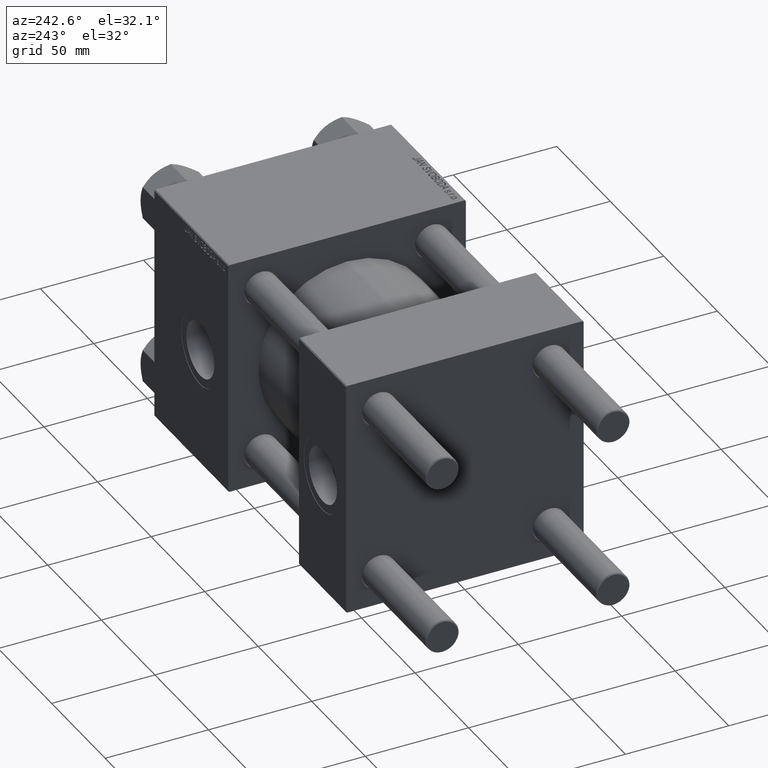
[diagram: clean part render]
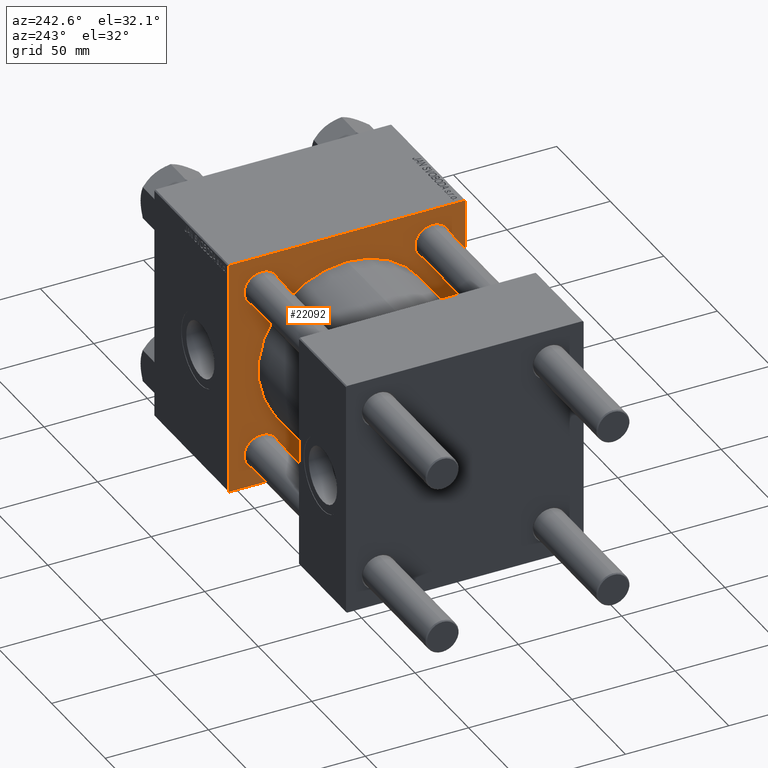
[diagram: same view with one face highlighted and labeled with its STEP entity id]
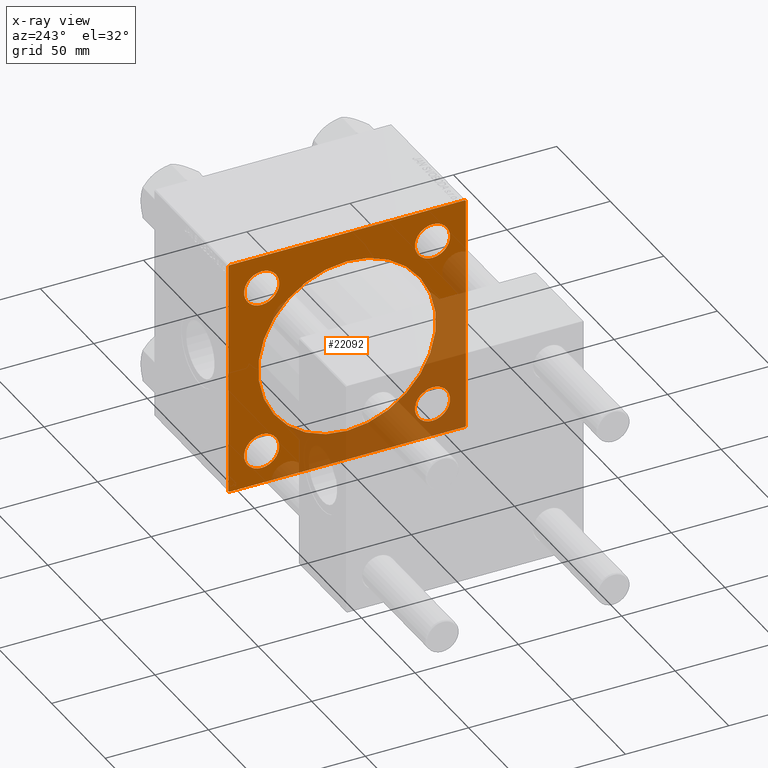
[diagram: x-ray of the same camera — body ghosted, the highlighted face saturated]
A machine part, auxiliary view. The second image highlights one B-rep face of the part: STEP entity #22092.
The next image is the same camera in x-ray: the body ghosted, the highlighted face saturated — about 38% of this face is hidden behind the body in this view.
In plain terms, the highlighted planar face has unit normal (-1, 0, 0).
Its self-contained STEP definition (entity closure, byte-faithful):
#196 = DIRECTION ( 'NONE',  ( 1.000000000000000000, 0.000000000000000000, 0.000000000000000000 ) ) ;
#443 = ORIENTED_EDGE ( 'NONE', *, *, #16248, .F. ) ;
#533 = ORIENTED_EDGE ( 'NONE', *, *, #43473, .T. ) ;
#750 = CARTESIAN_POINT ( 'NONE',  ( 110.0000000000000000, -57.25000000000117240, 57.24999999999879208 ) ) ;
#777 = CIRCLE ( 'NONE', #38903, 8.500000000000007105 ) ;
#1076 = VERTEX_POINT ( 'NONE', #11775 ) ;
#1512 = AXIS2_PLACEMENT_3D ( 'NONE', #7655, #35084, #11737 ) ;
#2351 = DIRECTION ( 'NONE',  ( -1.000000000000000000, 0.000000000000000000, -0.000000000000000000 ) ) ;
#2547 = DIRECTION ( 'NONE',  ( 0.000000000000000000, 0.000000000000000000, -1.000000000000000000 ) ) ;
#3071 = VERTEX_POINT ( 'NONE', #23290 ) ;
#3295 = CARTESIAN_POINT ( 'NONE',  ( 110.0000000000000000, 57.50000000000000000, 57.50000000000000711 ) ) ;
#3551 = DIRECTION ( 'NONE',  ( -0.000000000000000000, 0.7071067811865328068, 0.7071067811865622277 ) ) ;
#3868 = EDGE_LOOP ( 'NONE', ( #35946, #33199 ) ) ;
#3959 = CARTESIAN_POINT ( 'NONE',  ( 110.0000000000000000, -56.99999999999995737, -57.49999999999997868 ) ) ;
#4035 = AXIS2_PLACEMENT_3D ( 'NONE', #26651, #11156, #33759 ) ;
#4253 = DIRECTION ( 'NONE',  ( 0.000000000000000000, 0.000000000000000000, -1.000000000000000000 ) ) ;
#4284 = AXIS2_PLACEMENT_3D ( 'NONE', #10666, #29948, #7083 ) ;
#4690 = EDGE_CURVE ( 'NONE', #11650, #33056, #777, .T. ) ;
#4999 = CARTESIAN_POINT ( 'NONE',  ( 110.0000000000000000, 0.000000000000000000, 0.000000000000000000 ) ) ;
#5244 = VECTOR ( 'NONE', #2547, 1000.000000000000000 ) ;
#5296 = LINE ( 'NONE', #8374, #33951 ) ;
#5404 = DIRECTION ( 'NONE',  ( 0.000000000000000000, 0.000000000000000000, 1.000000000000000000 ) ) ;
#5959 = ORIENTED_EDGE ( 'NONE', *, *, #45677, .T. ) ;
#6147 = FACE_BOUND ( 'NONE', #21334, .T. ) ;
#6353 = AXIS2_PLACEMENT_3D ( 'NONE', #12241, #17045, #12499 ) ;
#6651 = CARTESIAN_POINT ( 'NONE',  ( 110.0000000000000000, 0.000000000000000000, 43.00000000000000000 ) ) ;
#7033 = VERTEX_POINT ( 'NONE', #44618 ) ;
#7083 = DIRECTION ( 'NONE',  ( 0.000000000000000000, 0.000000000000000000, 1.000000000000000000 ) ) ;
#7655 = CARTESIAN_POINT ( 'NONE',  ( 110.0000000000000000, -41.34999999999998721, -41.35000000000000853 ) ) ;
#8155 = VERTEX_POINT ( 'NONE', #33912 ) ;
#8374 = CARTESIAN_POINT ( 'NONE',  ( 110.0000000000000000, 57.50000000000000000, -57.49999999999996447 ) ) ;
#8846 = CARTESIAN_POINT ( 'NONE',  ( 110.0000000000000000, 57.50000000000000000, -56.99999999999994316 ) ) ;
#9011 = DIRECTION ( 'NONE',  ( 0.000000000000000000, 0.7071067811865672237, -0.7071067811865279218 ) ) ;
#9235 = FACE_BOUND ( 'NONE', #11467, .T. ) ;
#9253 = DIRECTION ( 'NONE',  ( 0.000000000000000000, -0.7071067811865721087, 0.7071067811865230368 ) ) ;
#9413 = EDGE_LOOP ( 'NONE', ( #32972, #14678, #34796, #11151, #443, #36704, #39535, #34699 ) ) ;
#9431 = VECTOR ( 'NONE', #9253, 1000.000000000000000 ) ;
#10435 = EDGE_CURVE ( 'NONE', #8155, #25595, #16410, .T. ) ;
#10666 = CARTESIAN_POINT ( 'NONE',  ( 110.0000000000000000, 41.34999999999999432, -41.35000000000000142 ) ) ;
#11151 = ORIENTED_EDGE ( 'NONE', *, *, #25786, .T. ) ;
#11156 = DIRECTION ( 'NONE',  ( 1.000000000000000000, -0.000000000000000000, 0.000000000000000000 ) ) ;
#11426 = LINE ( 'NONE', #41890, #46335 ) ;
#11467 = EDGE_LOOP ( 'NONE', ( #37936, #533 ) ) ;
#11650 = VERTEX_POINT ( 'NONE', #44377 ) ;
#11701 = CARTESIAN_POINT ( 'NONE',  ( 110.0000000000000000, -41.34999999999998721, -49.85000000000002274 ) ) ;
#11737 = DIRECTION ( 'NONE',  ( 0.000000000000000000, 0.000000000000000000, 1.000000000000000000 ) ) ;
#11775 = CARTESIAN_POINT ( 'NONE',  ( 110.0000000000000000, -41.34999999999998721, 32.85000000000000142 ) ) ;
#11840 = ORIENTED_EDGE ( 'NONE', *, *, #42559, .T. ) ;
#12241 = CARTESIAN_POINT ( 'NONE',  ( 110.0000000000000000, 0.000000000000000000, 0.000000000000000000 ) ) ;
#12499 = DIRECTION ( 'NONE',  ( 0.000000000000000000, 0.000000000000000000, -1.000000000000000000 ) ) ;
#12692 = EDGE_CURVE ( 'NONE', #33056, #11650, #24564, .T. ) ;
#13045 = PLANE ( 'NONE',  #44156 ) ;
#13048 = CARTESIAN_POINT ( 'NONE',  ( 110.0000000000000000, 41.34999999999999432, 41.35000000000000142 ) ) ;
#13311 = VERTEX_POINT ( 'NONE', #30414 ) ;
#13843 = CIRCLE ( 'NONE', #42216, 8.500000000000007105 ) ;
#14678 = ORIENTED_EDGE ( 'NONE', *, *, #26268, .T. ) ;
#15632 = VERTEX_POINT ( 'NONE', #3959 ) ;
#16248 = EDGE_CURVE ( 'NONE', #45647, #7033, #23149, .T. ) ;
#16410 = LINE ( 'NONE', #35440, #39880 ) ;
#17045 = DIRECTION ( 'NONE',  ( 1.000000000000000000, 0.000000000000000000, 0.000000000000000000 ) ) ;
#17138 = CIRCLE ( 'NONE', #47938, 8.500000000000007105 ) ;
#17566 = DIRECTION ( 'NONE',  ( 0.000000000000000000, 0.000000000000000000, 1.000000000000000000 ) ) ;
#17654 = CARTESIAN_POINT ( 'NONE',  ( 110.0000000000000000, 57.00000000000000000, -57.49999999999996447 ) ) ;
#17811 = DIRECTION ( 'NONE',  ( 1.000000000000000000, -0.000000000000000000, 0.000000000000000000 ) ) ;
#17828 = CIRCLE ( 'NONE', #24326, 8.500000000000007105 ) ;
#19341 = DIRECTION ( 'NONE',  ( 0.000000000000000000, 0.000000000000000000, 1.000000000000000000 ) ) ;
#19464 = CIRCLE ( 'NONE', #4035, 8.500000000000007105 ) ;
#19838 = CARTESIAN_POINT ( 'NONE',  ( 110.0000000000000000, 41.34999999999999432, 32.84999999999999432 ) ) ;
#20803 = ORIENTED_EDGE ( 'NONE', *, *, #4690, .T. ) ;
#20916 = VERTEX_POINT ( 'NONE', #17654 ) ;
#21088 = CIRCLE ( 'NONE', #42168, 43.00000000000000000 ) ;
#21334 = EDGE_LOOP ( 'NONE', ( #39217, #20803 ) ) ;
#21413 = FACE_BOUND ( 'NONE', #3868, .T. ) ;
#22092 = ADVANCED_FACE ( 'NONE', ( #47816, #24729, #6147, #21413, #9235, #48314 ), #13045, .T. ) ;
#22393 = VECTOR ( 'NONE', #9011, 1000.000000000000000 ) ;
#22426 = EDGE_CURVE ( 'NONE', #13311, #34493, #41885, .T. ) ;
#23149 = LINE ( 'NONE', #45742, #35889 ) ;
#23290 = CARTESIAN_POINT ( 'NONE',  ( 110.0000000000000000, 5.265981236333618470E-15, -43.00000000000000000 ) ) ;
#23415 = CIRCLE ( 'NONE', #1512, 8.500000000000007105 ) ;
#23865 = DIRECTION ( 'NONE',  ( 0.000000000000000000, -1.000000000000000000, -1.206764157201257291E-16 ) ) ;
#24326 = AXIS2_PLACEMENT_3D ( 'NONE', #13048, #32085, #5404 ) ;
#24564 = CIRCLE ( 'NONE', #4284, 8.500000000000007105 ) ;
#24688 = VERTEX_POINT ( 'NONE', #45128 ) ;
#24729 = FACE_BOUND ( 'NONE', #44785, .T. ) ;
#24743 = CARTESIAN_POINT ( 'NONE',  ( 110.0000000000000000, -57.24999999999798916, -57.25000000000196820 ) ) ;
#25246 = VERTEX_POINT ( 'NONE', #6651 ) ;
#25595 = VERTEX_POINT ( 'NONE', #47519 ) ;
#25786 = EDGE_CURVE ( 'NONE', #8155, #7033, #39337, .T. ) ;
#26268 = EDGE_CURVE ( 'NONE', #15632, #25595, #37408, .T. ) ;
#26636 = VERTEX_POINT ( 'NONE', #11701 ) ;
#26651 = CARTESIAN_POINT ( 'NONE',  ( 110.0000000000000000, -41.34999999999998721, 41.35000000000000853 ) ) ;
#27007 = CARTESIAN_POINT ( 'NONE',  ( 110.0000000000000000, 41.34999999999999432, -32.84999999999999432 ) ) ;
#27010 = VERTEX_POINT ( 'NONE', #38737 ) ;
#27783 = VERTEX_POINT ( 'NONE', #19838 ) ;
#29452 = EDGE_CURVE ( 'NONE', #45647, #13311, #46840, .T. ) ;
#29948 = DIRECTION ( 'NONE',  ( 1.000000000000000000, -0.000000000000000000, 0.000000000000000000 ) ) ;
#30414 = CARTESIAN_POINT ( 'NONE',  ( 110.0000000000000000, 57.50000000000000000, 57.00000000000000711 ) ) ;
#31095 = VERTEX_POINT ( 'NONE', #46548 ) ;
#31849 = EDGE_LOOP ( 'NONE', ( #5959, #45884 ) ) ;
#31880 = DIRECTION ( 'NONE',  ( 0.000000000000000000, 0.000000000000000000, -1.000000000000000000 ) ) ;
#32085 = DIRECTION ( 'NONE',  ( 1.000000000000000000, -0.000000000000000000, 0.000000000000000000 ) ) ;
#32824 = DIRECTION ( 'NONE',  ( -0.000000000000000000, 0.000000000000000000, 1.000000000000000000 ) ) ;
#32882 = DIRECTION ( 'NONE',  ( 1.000000000000000000, -0.000000000000000000, 0.000000000000000000 ) ) ;
#32972 = ORIENTED_EDGE ( 'NONE', *, *, #36702, .T. ) ;
#33056 = VERTEX_POINT ( 'NONE', #27007 ) ;
#33199 = ORIENTED_EDGE ( 'NONE', *, *, #35420, .T. ) ;
#33636 = DIRECTION ( 'NONE',  ( 0.000000000000000000, 0.000000000000000000, 1.000000000000000000 ) ) ;
#33759 = DIRECTION ( 'NONE',  ( 0.000000000000000000, 0.000000000000000000, 1.000000000000000000 ) ) ;
#33912 = CARTESIAN_POINT ( 'NONE',  ( 110.0000000000000000, -57.49999999999999289, 56.99999999999996447 ) ) ;
#33951 = VECTOR ( 'NONE', #23865, 1000.000000000000000 ) ;
#34119 = CARTESIAN_POINT ( 'NONE',  ( 110.0000000000000000, 56.99999999999997158, 57.50000000000000711 ) ) ;
#34319 = DIRECTION ( 'NONE',  ( 0.000000000000000000, -1.000000000000000000, -1.206764157201257291E-16 ) ) ;
#34493 = VERTEX_POINT ( 'NONE', #8846 ) ;
#34567 = DIRECTION ( 'NONE',  ( 1.000000000000000000, -0.000000000000000000, 0.000000000000000000 ) ) ;
#34699 = ORIENTED_EDGE ( 'NONE', *, *, #46943, .T. ) ;
#34796 = ORIENTED_EDGE ( 'NONE', *, *, #10435, .F. ) ;
#35084 = DIRECTION ( 'NONE',  ( 1.000000000000000000, -0.000000000000000000, 0.000000000000000000 ) ) ;
#35420 = EDGE_CURVE ( 'NONE', #26636, #24688, #23415, .T. ) ;
#35440 = CARTESIAN_POINT ( 'NONE',  ( 110.0000000000000000, -57.49999999999999289, 57.49999999999999289 ) ) ;
#35491 = EDGE_CURVE ( 'NONE', #25246, #3071, #36344, .T. ) ;
#35889 = VECTOR ( 'NONE', #34319, 1000.000000000000000 ) ;
#35946 = ORIENTED_EDGE ( 'NONE', *, *, #40627, .T. ) ;
#36344 = CIRCLE ( 'NONE', #6353, 43.00000000000000000 ) ;
#36526 = AXIS2_PLACEMENT_3D ( 'NONE', #39372, #34567, #19341 ) ;
#36702 = EDGE_CURVE ( 'NONE', #20916, #15632, #5296, .T. ) ;
#36704 = ORIENTED_EDGE ( 'NONE', *, *, #29452, .T. ) ;
#37137 = CARTESIAN_POINT ( 'NONE',  ( 110.0000000000000000, 0.000000000000000000, 0.000000000000000000 ) ) ;
#37408 = LINE ( 'NONE', #24743, #9431 ) ;
#37936 = ORIENTED_EDGE ( 'NONE', *, *, #35491, .T. ) ;
#38737 = CARTESIAN_POINT ( 'NONE',  ( 110.0000000000000000, 41.34999999999999432, 49.85000000000001563 ) ) ;
#38903 = AXIS2_PLACEMENT_3D ( 'NONE', #48513, #17811, #17566 ) ;
#39217 = ORIENTED_EDGE ( 'NONE', *, *, #12692, .T. ) ;
#39249 = ORIENTED_EDGE ( 'NONE', *, *, #41496, .T. ) ;
#39337 = LINE ( 'NONE', #750, #46717 ) ;
#39372 = CARTESIAN_POINT ( 'NONE',  ( 110.0000000000000000, -41.34999999999998721, -41.35000000000000853 ) ) ;
#39475 = CARTESIAN_POINT ( 'NONE',  ( 110.0000000000000000, 57.24999999999840838, 57.25000000000159162 ) ) ;
#39535 = ORIENTED_EDGE ( 'NONE', *, *, #22426, .T. ) ;
#39880 = VECTOR ( 'NONE', #31880, 1000.000000000000000 ) ;
#40627 = EDGE_CURVE ( 'NONE', #24688, #26636, #45430, .T. ) ;
#41496 = EDGE_CURVE ( 'NONE', #27010, #27783, #13843, .T. ) ;
#41885 = LINE ( 'NONE', #3295, #5244 ) ;
#41888 = EDGE_CURVE ( 'NONE', #1076, #31095, #19464, .T. ) ;
#41890 = CARTESIAN_POINT ( 'NONE',  ( 110.0000000000000000, 57.25000000000157030, -57.24999999999838707 ) ) ;
#42168 = AXIS2_PLACEMENT_3D ( 'NONE', #4999, #196, #4253 ) ;
#42216 = AXIS2_PLACEMENT_3D ( 'NONE', #45055, #32882, #33636 ) ;
#42246 = DIRECTION ( 'NONE',  ( 1.000000000000000000, -0.000000000000000000, 0.000000000000000000 ) ) ;
#42559 = EDGE_CURVE ( 'NONE', #27783, #27010, #17828, .T. ) ;
#43473 = EDGE_CURVE ( 'NONE', #3071, #25246, #21088, .T. ) ;
#44156 = AXIS2_PLACEMENT_3D ( 'NONE', #37137, #2351, #32824 ) ;
#44377 = CARTESIAN_POINT ( 'NONE',  ( 110.0000000000000000, 41.34999999999999432, -49.85000000000001563 ) ) ;
#44618 = CARTESIAN_POINT ( 'NONE',  ( 110.0000000000000000, -56.99999999999998579, 57.49999999999999289 ) ) ;
#44785 = EDGE_LOOP ( 'NONE', ( #39249, #11840 ) ) ;
#45055 = CARTESIAN_POINT ( 'NONE',  ( 110.0000000000000000, 41.34999999999999432, 41.35000000000000142 ) ) ;
#45128 = CARTESIAN_POINT ( 'NONE',  ( 110.0000000000000000, -41.34999999999998721, -32.85000000000000142 ) ) ;
#45285 = DIRECTION ( 'NONE',  ( 0.000000000000000000, 0.000000000000000000, 1.000000000000000000 ) ) ;
#45430 = CIRCLE ( 'NONE', #36526, 8.500000000000007105 ) ;
#45647 = VERTEX_POINT ( 'NONE', #34119 ) ;
#45677 = EDGE_CURVE ( 'NONE', #31095, #1076, #17138, .T. ) ;
#45742 = CARTESIAN_POINT ( 'NONE',  ( 110.0000000000000000, 57.50000000000000000, 57.50000000000000711 ) ) ;
#45884 = ORIENTED_EDGE ( 'NONE', *, *, #41888, .T. ) ;
#46043 = CARTESIAN_POINT ( 'NONE',  ( 110.0000000000000000, -41.34999999999998721, 41.35000000000000853 ) ) ;
#46335 = VECTOR ( 'NONE', #49765, 1000.000000000000000 ) ;
#46548 = CARTESIAN_POINT ( 'NONE',  ( 110.0000000000000000, -41.34999999999998721, 49.85000000000002274 ) ) ;
#46717 = VECTOR ( 'NONE', #3551, 1000.000000000000000 ) ;
#46840 = LINE ( 'NONE', #39475, #22393 ) ;
#46943 = EDGE_CURVE ( 'NONE', #34493, #20916, #11426, .T. ) ;
#47519 = CARTESIAN_POINT ( 'NONE',  ( 110.0000000000000000, -57.49999999999999289, -56.99999999999997868 ) ) ;
#47816 = FACE_BOUND ( 'NONE', #31849, .T. ) ;
#47938 = AXIS2_PLACEMENT_3D ( 'NONE', #46043, #42246, #45285 ) ;
#48314 = FACE_OUTER_BOUND ( 'NONE', #9413, .T. ) ;
#48513 = CARTESIAN_POINT ( 'NONE',  ( 110.0000000000000000, 41.34999999999999432, -41.35000000000000142 ) ) ;
#49765 = DIRECTION ( 'NONE',  ( -0.000000000000000000, -0.7071067811865279218, -0.7071067811865672237 ) ) ;